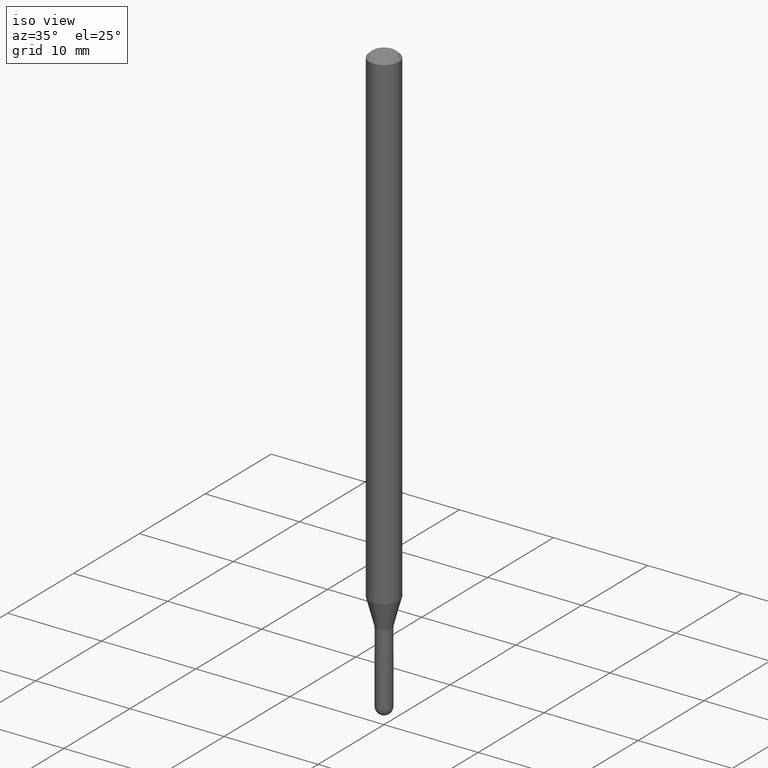
[diagram: clean part render]
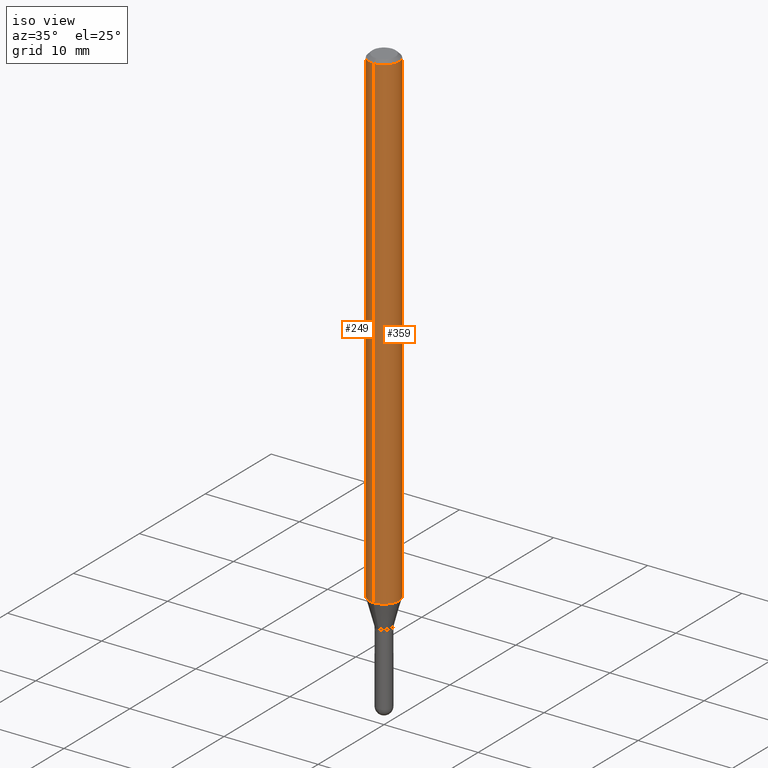
[diagram: same view with one multi-face feature highlighted, each face labeled with its STEP entity id]
A machine part, iso view. The highlighted faces form ONE feature: a constant-radius fillet chain: 2 tangent blend faces with common blend radius 1.5875 mm. The faces share edges in the B-rep.
Their STEP definitions:
[1] entity #359 (Cylinder):
#6 = CARTESIAN_POINT ( 'NONE',  ( 3.668259760924221134E-31, -5.237141023088193600E-17, -0.01500000000000000812 ) ) ;
#11 = EDGE_CURVE ( 'NONE', #389, #494, #391, .T. ) ;
#12 = DIRECTION ( 'NONE',  ( -2.445506507282812490E-29, 3.491427348725460806E-15, 1.000000000000000000 ) ) ;
#27 = ORIENTED_EDGE ( 'NONE', *, *, #216, .F. ) ;
#44 = DIRECTION ( 'NONE',  ( -2.445506507282812490E-29, 3.491427348725460411E-15, 1.000000000000000000 ) ) ;
#85 = EDGE_CURVE ( 'NONE', #389, #202, #399, .T. ) ;
#88 = DIRECTION ( 'NONE',  ( -6.982962677686265922E-15, -1.000000000000000000, 3.483106191921935554E-15 ) ) ;
#90 = CIRCLE ( 'NONE', #401, 0.06250000000000000000 ) ;
#94 = CARTESIAN_POINT ( 'NONE',  ( 4.440892098501132019E-16, 0.06249999999999995837, -0.01500000000000022669 ) ) ;
#99 = DIRECTION ( 'NONE',  ( -6.982962677686265922E-15, -1.000000000000000000, 3.491427348725460411E-15 ) ) ;
#105 = EDGE_LOOP ( 'NONE', ( #146, #324, #27, #124 ) ) ;
#124 = ORIENTED_EDGE ( 'NONE', *, *, #85, .F. ) ;
#146 = ORIENTED_EDGE ( 'NONE', *, *, #11, .T. ) ;
#159 = VECTOR ( 'NONE', #395, 39.37007874015748143 ) ;
#201 = CARTESIAN_POINT ( 'NONE',  ( 4.440892098501125116E-16, 0.06249999999999279743, -2.053038475772935190 ) ) ;
#202 = VERTEX_POINT ( 'NONE', #486 ) ;
#216 = EDGE_CURVE ( 'NONE', #202, #229, #90, .T. ) ;
#219 = EDGE_CURVE ( 'NONE', #494, #229, #409, .T. ) ;
#223 = CARTESIAN_POINT ( 'NONE',  ( -4.364351673553415767E-16, -0.06250000000000720257, -2.053038475772934746 ) ) ;
#225 = CARTESIAN_POINT ( 'NONE',  ( 0.000000000000000000, 0.000000000000000000, 0.000000000000000000 ) ) ;
#229 = VERTEX_POINT ( 'NONE', #94 ) ;
#237 = CARTESIAN_POINT ( 'NONE',  ( -4.364351673553916201E-16, -0.06250000000000000000, 2.182142092953412757E-16 ) ) ;
#248 = DIRECTION ( 'NONE',  ( -2.445506507282812490E-29, 3.491427348725460411E-15, 1.000000000000000000 ) ) ;
#276 = DIRECTION ( 'NONE',  ( -6.982962677686265922E-15, -1.000000000000000000, 4.370956789862821150E-15 ) ) ;
#290 = VECTOR ( 'NONE', #12, 39.37007874015748143 ) ;
#293 = FACE_OUTER_BOUND ( 'NONE', #105, .T. ) ;
#324 = ORIENTED_EDGE ( 'NONE', *, *, #219, .T. ) ;
#344 = AXIS2_PLACEMENT_3D ( 'NONE', #443, #44, #276 ) ;
#359 = ADVANCED_FACE ( 'NONE', ( #293 ), #430, .T. ) ;
#368 = AXIS2_PLACEMENT_3D ( 'NONE', #225, #374, #99 ) ;
#374 = DIRECTION ( 'NONE',  ( -2.445506507282812490E-29, 3.491427348725460411E-15, 1.000000000000000000 ) ) ;
#389 = VERTEX_POINT ( 'NONE', #223 ) ;
#391 = CIRCLE ( 'NONE', #344, 0.06250000000000000000 ) ;
#395 = DIRECTION ( 'NONE',  ( -2.445506507282812490E-29, 3.491427348725460806E-15, 1.000000000000000000 ) ) ;
#399 = LINE ( 'NONE', #237, #159 ) ;
#401 = AXIS2_PLACEMENT_3D ( 'NONE', #6, #248, #88 ) ;
#409 = LINE ( 'NONE', #414, #290 ) ;
#414 = CARTESIAN_POINT ( 'NONE',  ( 4.440892098500625669E-16, 0.06250000000000000000, -2.182142092953412757E-16 ) ) ;
#430 = CYLINDRICAL_SURFACE ( 'NONE', #368, 0.06250000000000000000 ) ;
#443 = CARTESIAN_POINT ( 'NONE',  ( 5.020718952204699341E-29, -7.168034682299257962E-15, -2.053038475772934746 ) ) ;
#486 = CARTESIAN_POINT ( 'NONE',  ( -4.364351673553912750E-16, -0.06250000000000005551, -0.01499999999999979128 ) ) ;
#494 = VERTEX_POINT ( 'NONE', #201 ) ;
[2] entity #249 (Cylinder):
#12 = DIRECTION ( 'NONE',  ( -2.445506507282812490E-29, 3.491427348725460806E-15, 1.000000000000000000 ) ) ;
#47 = DIRECTION ( 'NONE',  ( -2.445506507282812490E-29, 3.491427348725460411E-15, 1.000000000000000000 ) ) ;
#54 = CARTESIAN_POINT ( 'NONE',  ( 0.000000000000000000, 0.000000000000000000, 0.000000000000000000 ) ) ;
#63 = CIRCLE ( 'NONE', #488, 0.06250000000000000000 ) ;
#69 = ORIENTED_EDGE ( 'NONE', *, *, #122, .F. ) ;
#85 = EDGE_CURVE ( 'NONE', #389, #202, #399, .T. ) ;
#94 = CARTESIAN_POINT ( 'NONE',  ( 4.440892098501132019E-16, 0.06249999999999995837, -0.01500000000000022669 ) ) ;
#122 = EDGE_CURVE ( 'NONE', #229, #202, #63, .T. ) ;
#150 = EDGE_LOOP ( 'NONE', ( #425, #385, #354, #69 ) ) ;
#159 = VECTOR ( 'NONE', #395, 39.37007874015748143 ) ;
#167 = DIRECTION ( 'NONE',  ( -6.982962677686265922E-15, -1.000000000000000000, 3.491427348725460411E-15 ) ) ;
#197 = CIRCLE ( 'NONE', #306, 0.06250000000000000000 ) ;
#201 = CARTESIAN_POINT ( 'NONE',  ( 4.440892098501125116E-16, 0.06249999999999279743, -2.053038475772935190 ) ) ;
#202 = VERTEX_POINT ( 'NONE', #486 ) ;
#217 = DIRECTION ( 'NONE',  ( -2.445506507282812490E-29, 3.491427348725460411E-15, 1.000000000000000000 ) ) ;
#219 = EDGE_CURVE ( 'NONE', #494, #229, #409, .T. ) ;
#223 = CARTESIAN_POINT ( 'NONE',  ( -4.364351673553415767E-16, -0.06250000000000720257, -2.053038475772934746 ) ) ;
#229 = VERTEX_POINT ( 'NONE', #94 ) ;
#237 = CARTESIAN_POINT ( 'NONE',  ( -4.364351673553916201E-16, -0.06250000000000000000, 2.182142092953412757E-16 ) ) ;
#249 = ADVANCED_FACE ( 'NONE', ( #292 ), #408, .T. ) ;
#272 = EDGE_CURVE ( 'NONE', #494, #389, #197, .T. ) ;
#288 = CARTESIAN_POINT ( 'NONE',  ( 3.668259760924221134E-31, -5.237141023088193600E-17, -0.01500000000000000812 ) ) ;
#290 = VECTOR ( 'NONE', #12, 39.37007874015748143 ) ;
#292 = FACE_OUTER_BOUND ( 'NONE', #150, .T. ) ;
#302 = DIRECTION ( 'NONE',  ( -6.982962677686265922E-15, -1.000000000000000000, 4.370956789862821150E-15 ) ) ;
#306 = AXIS2_PLACEMENT_3D ( 'NONE', #459, #217, #302 ) ;
#354 = ORIENTED_EDGE ( 'NONE', *, *, #85, .T. ) ;
#370 = DIRECTION ( 'NONE',  ( -2.445506507282812490E-29, 3.491427348725460411E-15, 1.000000000000000000 ) ) ;
#385 = ORIENTED_EDGE ( 'NONE', *, *, #272, .T. ) ;
#389 = VERTEX_POINT ( 'NONE', #223 ) ;
#395 = DIRECTION ( 'NONE',  ( -2.445506507282812490E-29, 3.491427348725460806E-15, 1.000000000000000000 ) ) ;
#399 = LINE ( 'NONE', #237, #159 ) ;
#408 = CYLINDRICAL_SURFACE ( 'NONE', #470, 0.06250000000000000000 ) ;
#409 = LINE ( 'NONE', #414, #290 ) ;
#414 = CARTESIAN_POINT ( 'NONE',  ( 4.440892098500625669E-16, 0.06250000000000000000, -2.182142092953412757E-16 ) ) ;
#425 = ORIENTED_EDGE ( 'NONE', *, *, #219, .F. ) ;
#449 = DIRECTION ( 'NONE',  ( -6.982962677686265922E-15, -1.000000000000000000, 3.483106191921935554E-15 ) ) ;
#459 = CARTESIAN_POINT ( 'NONE',  ( 5.020718952204699341E-29, -7.168034682299257962E-15, -2.053038475772934746 ) ) ;
#470 = AXIS2_PLACEMENT_3D ( 'NONE', #54, #47, #167 ) ;
#486 = CARTESIAN_POINT ( 'NONE',  ( -4.364351673553912750E-16, -0.06250000000000005551, -0.01499999999999979128 ) ) ;
#488 = AXIS2_PLACEMENT_3D ( 'NONE', #288, #370, #449 ) ;
#494 = VERTEX_POINT ( 'NONE', #201 ) ;